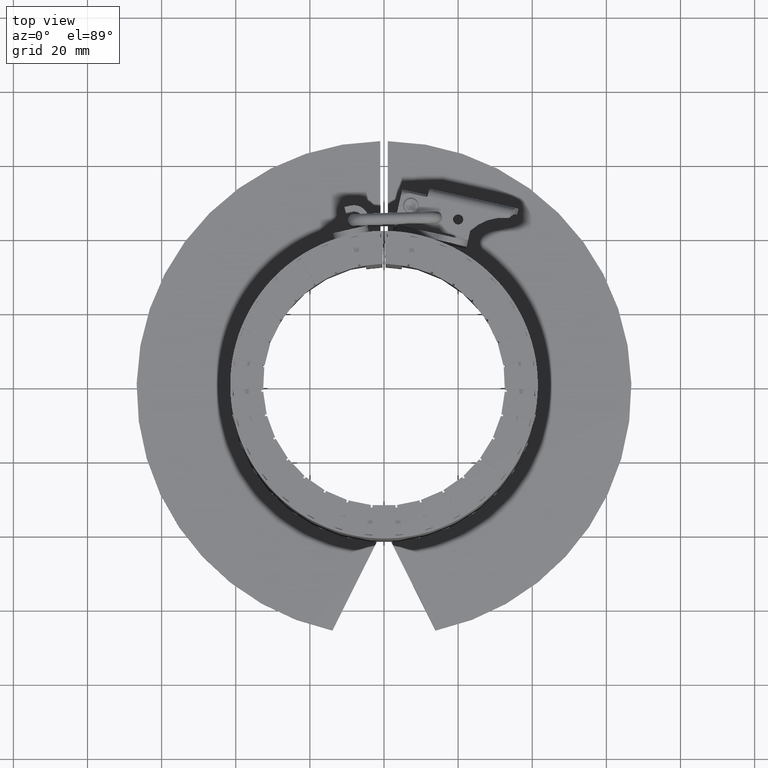
[diagram: clean part render]
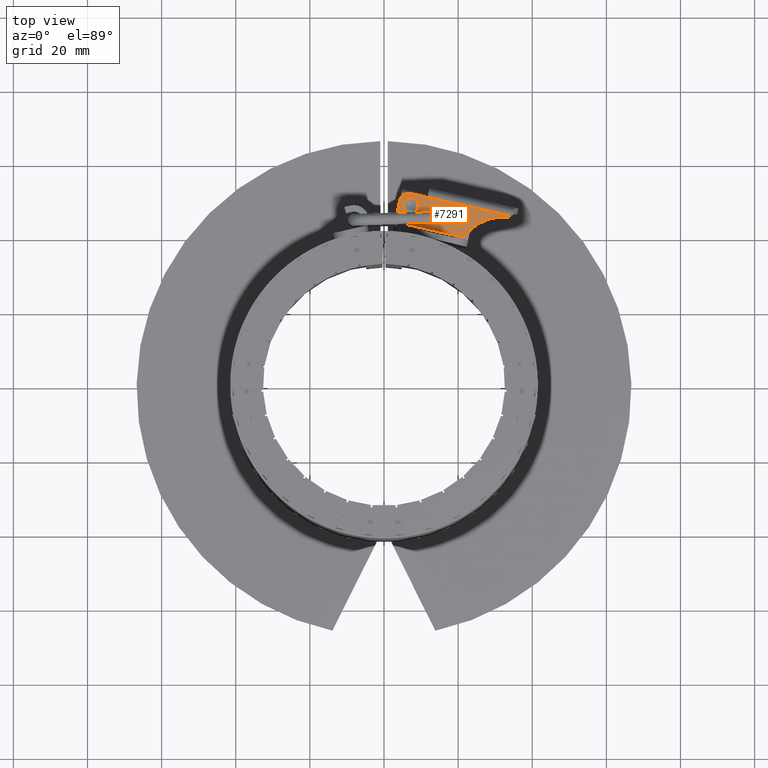
[diagram: same view with one face highlighted and labeled with its STEP entity id]
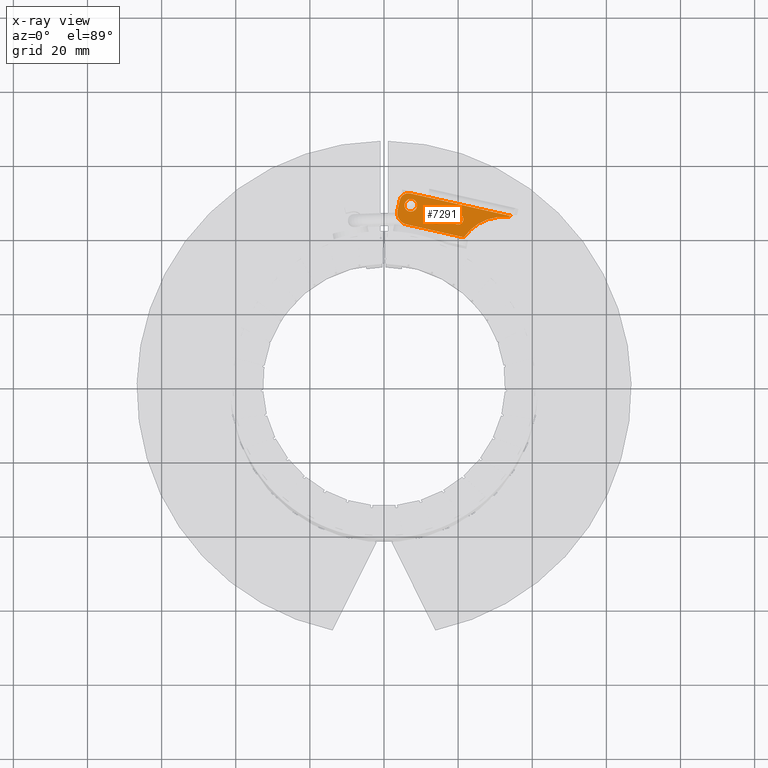
[diagram: x-ray of the same camera — body ghosted, the highlighted face saturated]
A machine part, top view. The second image highlights one B-rep face of the part: STEP entity #7291.
The next image is the same camera in x-ray: the body ghosted, the highlighted face saturated — about 0% of this face is hidden behind the body in this view.
In plain terms, the highlighted planar face has unit normal (0, 0, 1).
Its self-contained STEP definition (entity closure, byte-faithful):
#7153=CARTESIAN_POINT('',(33.963578506856905,37.35575246169676,7.850000000000033));
#7154=DIRECTION('',(0.0,0.0,1.0));
#7155=DIRECTION('',(0.975610251018905,-0.219509995459954,0.0));
#7156=AXIS2_PLACEMENT_3D('',#7153,#7154,#7155);
#7157=PLANE('',#7156);
#7158=CARTESIAN_POINT('',(11.222084143044109,51.082530455846403,7.850000002622752));
#7159=VERTEX_POINT('',#7158);
#7160=CARTESIAN_POINT('',(7.124521088764704,52.004472436778222,7.850000001836794));
#7161=VERTEX_POINT('',#7160);
#7162=CARTESIAN_POINT('',(11.222084143044103,51.082530455846403,7.850000003814928));
#7163=DIRECTION('',(-0.975610251018905,0.219509995459954,-2.326182E-015));
#7164=VECTOR('',#7163,4.200000000000003);
#7165=LINE('',#7162,#7164);
#7166=EDGE_CURVE('',#7159,#7161,#7165,.T.);
#7167=ORIENTED_EDGE('',*,*,#7166,.T.);
#7168=CARTESIAN_POINT('',(4.256232497215448,50.189831823436748,7.849999999999953));
#7169=VERTEX_POINT('',#7168);
#7170=CARTESIAN_POINT('',(6.597697099660815,49.663007834332845,7.849999999999962));
#7171=DIRECTION('',(-4.553111E-017,-2.023626E-016,1.0));
#7172=DIRECTION('',(-0.219509995459954,-0.975610251018905,-2.074216E-016));
#7173=AXIS2_PLACEMENT_3D('',#7170,#7171,#7172);
#7174=CIRCLE('',#7173,2.4);
#7175=EDGE_CURVE('',#7161,#7169,#7174,.T.);
#7176=ORIENTED_EDGE('',*,*,#7175,.T.);
#7177=CARTESIAN_POINT('',(3.641604509927575,47.458123120583799,7.849999999999953));
#7178=VERTEX_POINT('',#7177);
#7179=CARTESIAN_POINT('',(3.641604509927575,47.458123120583799,7.849999999999953));
#7180=DIRECTION('',(0.219509995459955,0.975610251018905,3.172066E-016));
#7181=VECTOR('',#7180,2.8);
#7182=LINE('',#7179,#7181);
#7183=EDGE_CURVE('',#7178,#7169,#7182,.T.);
#7184=ORIENTED_EDGE('',*,*,#7183,.F.);
#7185=CARTESIAN_POINT('',(6.061125327716218,43.633738331851447,7.849999999999962));
#7186=VERTEX_POINT('',#7185);
#7187=CARTESIAN_POINT('',(6.763557313188072,46.755691135111952,7.849999999999962));
#7188=DIRECTION('',(-4.553111E-017,-2.023626E-016,1.0));
#7189=DIRECTION('',(-0.219509995459954,-0.975610251018905,-2.074216E-016));
#7190=AXIS2_PLACEMENT_3D('',#7187,#7188,#7189);
#7191=CIRCLE('',#7190,3.200000000000001);
#7192=EDGE_CURVE('',#7178,#7186,#7191,.T.);
#7193=ORIENTED_EDGE('',*,*,#7192,.T.);
#7194=CARTESIAN_POINT('',(21.574982014387814,40.143157326474466,7.849999999999997));
#7195=VERTEX_POINT('',#7194);
#7196=CARTESIAN_POINT('',(21.574982014387814,40.143157326474466,7.849999999999997));
#7197=DIRECTION('',(-0.975610251018905,0.219509995459954,-2.290027E-015));
#7198=VECTOR('',#7197,15.901695036997898);
#7199=LINE('',#7196,#7198);
#7200=EDGE_CURVE('',#7195,#7186,#7199,.T.);
#7201=ORIENTED_EDGE('',*,*,#7200,.F.);
#7202=CARTESIAN_POINT('',(33.26005954935507,45.610530664445257,7.850000000000024));
#7203=VERTEX_POINT('',#7202);
#7204=CARTESIAN_POINT('',(32.053832302278103,32.967943277821874,7.850000000000024));
#7205=DIRECTION('',(2.259186E-015,-5.083116E-016,-1.0));
#7206=DIRECTION('',(-0.975610251018905,0.219509995459954,-2.315665E-015));
#7207=AXIS2_PLACEMENT_3D('',#7204,#7205,#7206);
#7208=CIRCLE('',#7207,12.700000000000001);
#7209=EDGE_CURVE('',#7195,#7203,#7208,.T.);
#7210=ORIENTED_EDGE('',*,*,#7209,.T.);
#7211=CARTESIAN_POINT('',(34.097120585789973,45.935701442468044,7.850000001669071));
#7212=VERTEX_POINT('',#7211);
#7213=CARTESIAN_POINT('',(33.355038072746964,46.606009986226638,7.850000000000024));
#7214=DIRECTION('',(-4.553111E-017,-2.023626E-016,1.0));
#7215=DIRECTION('',(-0.219509995459954,-0.975610251018905,-2.074216E-016));
#7216=AXIS2_PLACEMENT_3D('',#7213,#7214,#7215);
#7217=CIRCLE('',#7216,0.999999999999999);
#7218=EDGE_CURVE('',#7203,#7212,#7217,.T.);
#7219=ORIENTED_EDGE('',*,*,#7218,.T.);
#7220=CARTESIAN_POINT('',(34.097120585789973,45.935701442468051,7.850000000000024));
#7221=DIRECTION('',(-0.975610251018905,0.219509995459954,-2.310706E-015));
#7222=VECTOR('',#7221,23.446900459333737);
#7223=LINE('',#7220,#7222);
#7224=EDGE_CURVE('',#7212,#7159,#7223,.T.);
#7225=ORIENTED_EDGE('',*,*,#7224,.T.);
#7226=EDGE_LOOP('',(#7167,#7176,#7184,#7193,#7201,#7210,#7219,#7225));
#7227=FACE_OUTER_BOUND('',#7226,.T.);
#7228=CARTESIAN_POINT('',(5.565990876921831,49.177639654533571,7.849999999999962));
#7229=VERTEX_POINT('',#7228);
#7230=CARTESIAN_POINT('',(7.224528303653974,48.804472662251648,7.849999999999962));
#7231=DIRECTION('',(-4.553111E-017,-2.023626E-016,1.0));
#7232=DIRECTION('',(-0.219509995459954,-0.975610251018905,-2.074216E-016));
#7233=AXIS2_PLACEMENT_3D('',#7230,#7231,#7232);
#7234=CIRCLE('',#7233,1.7);
#7235=EDGE_CURVE('',#7229,#7229,#7234,.T.);
#7236=ORIENTED_EDGE('',*,*,#7235,.F.);
#7237=EDGE_LOOP('',(#7236));
#7238=FACE_BOUND('',#7237,.T.);
#7239=CARTESIAN_POINT('',(18.636731294864987,45.314254490361179,7.849999999999988));
#7240=VERTEX_POINT('',#7239);
#7241=CARTESIAN_POINT('',(20.002585646291454,45.006940496717235,7.849999999999997));
#7242=DIRECTION('',(-4.553111E-017,-2.023626E-016,1.0));
#7243=DIRECTION('',(-0.219509995459954,-0.975610251018905,-2.074216E-016));
#7244=AXIS2_PLACEMENT_3D('',#7241,#7242,#7243);
#7245=CIRCLE('',#7244,1.4);
#7246=EDGE_CURVE('',#7240,#7240,#7245,.T.);
#7247=ORIENTED_EDGE('',*,*,#7246,.F.);
#7248=EDGE_LOOP('',(#7247));
#7249=FACE_BOUND('',#7248,.T.);
#7250=CARTESIAN_POINT('',(15.657294164342073,45.572124348218999,7.849999999999988));
#7251=VERTEX_POINT('',#7250);
#7252=CARTESIAN_POINT('',(15.657294164342073,45.572124348218999,7.849999999999988));
#7253=CARTESIAN_POINT('',(15.651010824861826,45.769264172702044,7.849999999999988));
#7254=CARTESIAN_POINT('',(15.59739033611006,45.999798365110081,7.849999999999988));
#7255=CARTESIAN_POINT('',(15.434608297713623,46.359421096904079,7.849999999999988));
#7256=CARTESIAN_POINT('',(15.296548471482687,46.552069602258761,7.849999999999988));
#7257=CARTESIAN_POINT('',(15.007893293916217,46.822431455776382,7.849999999999988));
#7258=CARTESIAN_POINT('',(14.806093162475996,46.947824426306639,7.849999999999979));
#7259=CARTESIAN_POINT('',(14.434765907372661,47.087631726439668,7.849999999999979));
#7260=CARTESIAN_POINT('',(14.199404593242582,47.126470238552251,7.849999999999979));
#7261=CARTESIAN_POINT('',(13.802058841720681,47.113805835231446,7.849999999999979));
#7262=CARTESIAN_POINT('',(13.569667381327744,47.060116586362632,7.849999999999979));
#7263=CARTESIAN_POINT('',(13.206582806865219,46.897472710608447,7.849999999999979));
#7264=CARTESIAN_POINT('',(13.011501317280029,46.75956317874477,7.849999999999988));
#7265=CARTESIAN_POINT('',(12.736826937993904,46.47103062277742,7.849999999999988));
#7266=CARTESIAN_POINT('',(12.608634141437074,46.269157684273388,7.849999999999979));
#7267=CARTESIAN_POINT('',(12.466485777504715,45.8992603169714,7.849999999999979));
#7268=CARTESIAN_POINT('',(12.426683015329015,45.666247019130459,7.849999999999979));
#7269=CARTESIAN_POINT('',(12.439214526252997,45.27307076758013,7.849999999999979));
#7270=CARTESIAN_POINT('',(12.49346720537854,45.043737892075406,7.849999999999979));
#7271=CARTESIAN_POINT('',(12.657942687276957,44.684556501132462,7.849999999999979));
#7272=CARTESIAN_POINT('',(12.79795049779846,44.491604914785192,7.849999999999988));
#7273=CARTESIAN_POINT('',(13.089795309937164,44.220463185334367,7.849999999999988));
#7274=CARTESIAN_POINT('',(13.293664009381239,44.094512761684342,7.849999999999988));
#7275=CARTESIAN_POINT('',(13.667347854852467,43.954451435025632,7.849999999999988));
#7276=CARTESIAN_POINT('',(13.903387712327833,43.915410482224587,7.849999999999988));
#7277=CARTESIAN_POINT('',(14.301344834951678,43.928094371472156,7.849999999999988));
#7278=CARTESIAN_POINT('',(14.533755199109834,43.981841937407999,7.849999999999988));
#7279=CARTESIAN_POINT('',(14.895425816688853,44.145011713816132,7.849999999999988));
#7280=CARTESIAN_POINT('',(15.088831300531691,44.283000876170327,7.849999999999988));
#7281=CARTESIAN_POINT('',(15.359683881048344,44.57119564191197,7.849999999999988));
#7282=CARTESIAN_POINT('',(15.485195576660352,44.772244831164024,7.849999999999988));
#7283=CARTESIAN_POINT('',(15.624746335764863,45.141503665697229,7.849999999999988));
#7284=CARTESIAN_POINT('',(15.663577503822319,45.374984523735968,7.849999999999988));
#7285=CARTESIAN_POINT('',(15.657294164342073,45.572124348218999,7.849999999999988));
#7286=B_SPLINE_CURVE_WITH_KNOTS('',3,(#7252,#7253,#7254,#7255,#7256,#7257,#7258,#7259,#7260,#7261,#7262,#7263,#7264,#7265,#7266,#7267,#7268,#7269,#7270,#7271,#7272,#7273,#7274,#7275,#7276,#7277,#7278,#7279,#7280,#7281,#7282,#7283,#7284,#7285),.UNSPECIFIED.,.T.,.U.,(4,2,2,2,2,2,2,2,2,2,2,2,2,2,2,2,4),(0.0,0.059171979582405,0.118424596736793,0.177820877190462,0.23745694964883,0.297085134211406,0.356811503261032,0.416595529341013,0.475692619396028,0.53460830118978,0.594207221943932,0.654116505359901,0.713928194389201,0.773564266847569,0.832960547301238,0.892213164455625,0.95138514403803),.UNSPECIFIED.);
#7287=EDGE_CURVE('',#7251,#7251,#7286,.T.);
#7288=ORIENTED_EDGE('',*,*,#7287,.F.);
#7289=EDGE_LOOP('',(#7288));
#7290=FACE_BOUND('',#7289,.T.);
#7291=ADVANCED_FACE('',(#7227,#7238,#7249,#7290),#7157,.T.);